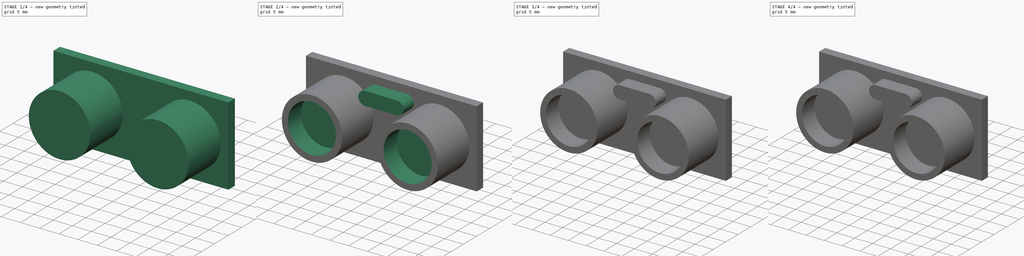
[diagram: build sequence overview — one tinted view per stage of 4, left to right]
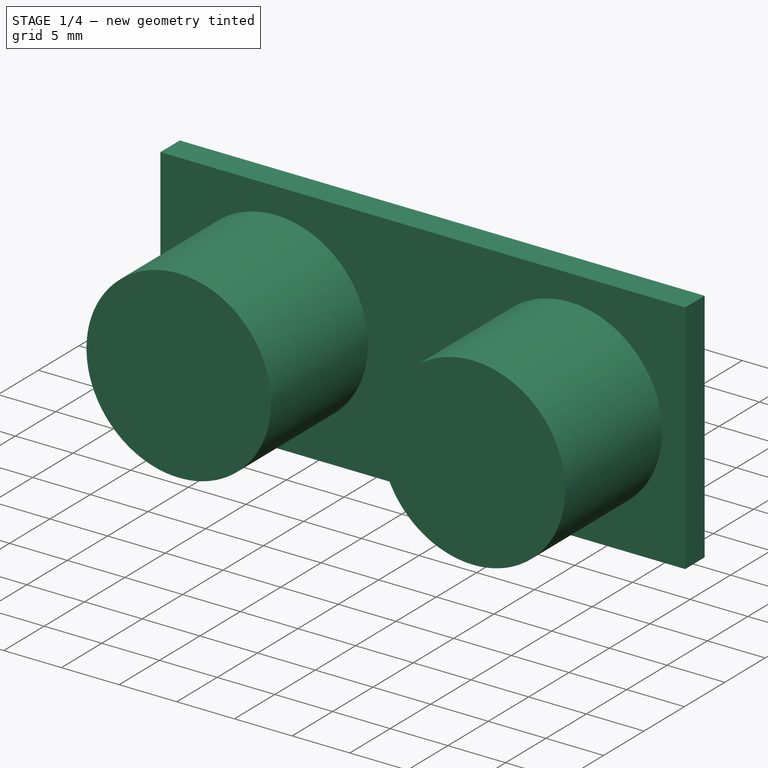
[diagram: stage 1 of 4 — iso view after this stage's code; geometry added in this stage tinted green]
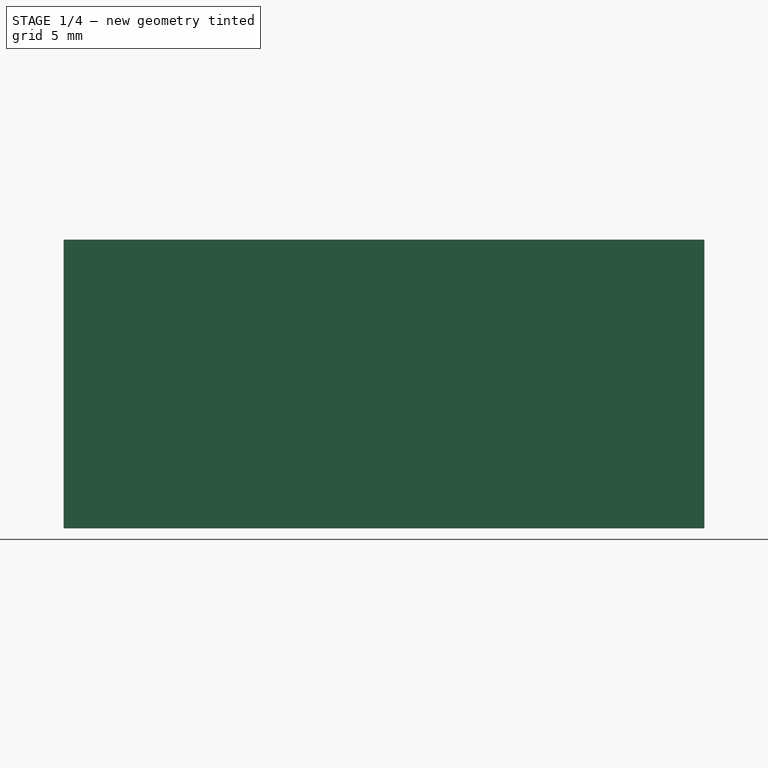
[diagram: stage 1 of 4 — front view after this stage's code; geometry added in this stage tinted green]
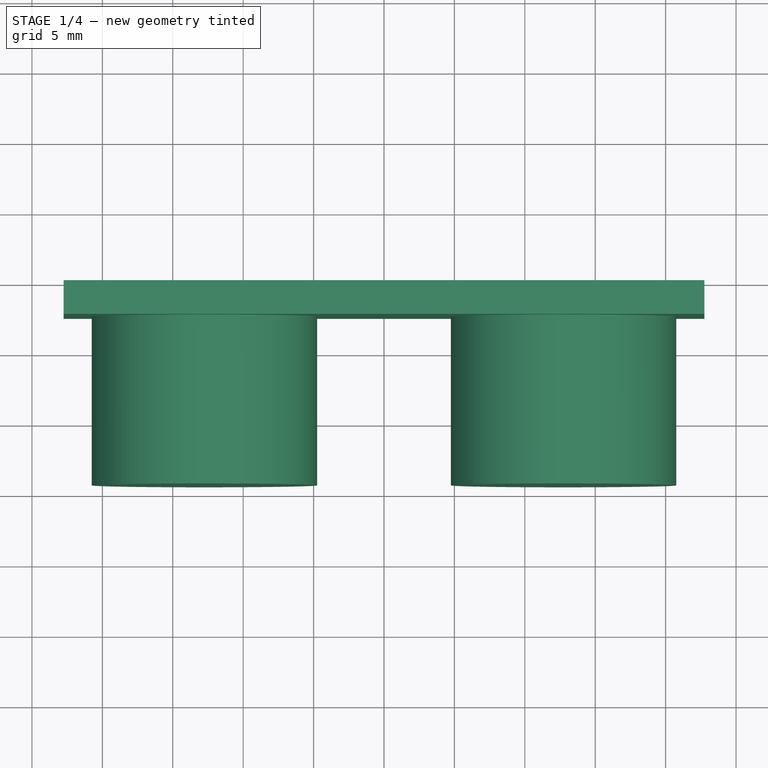
[diagram: stage 1 of 4 — top view after this stage's code; geometry added in this stage tinted green]
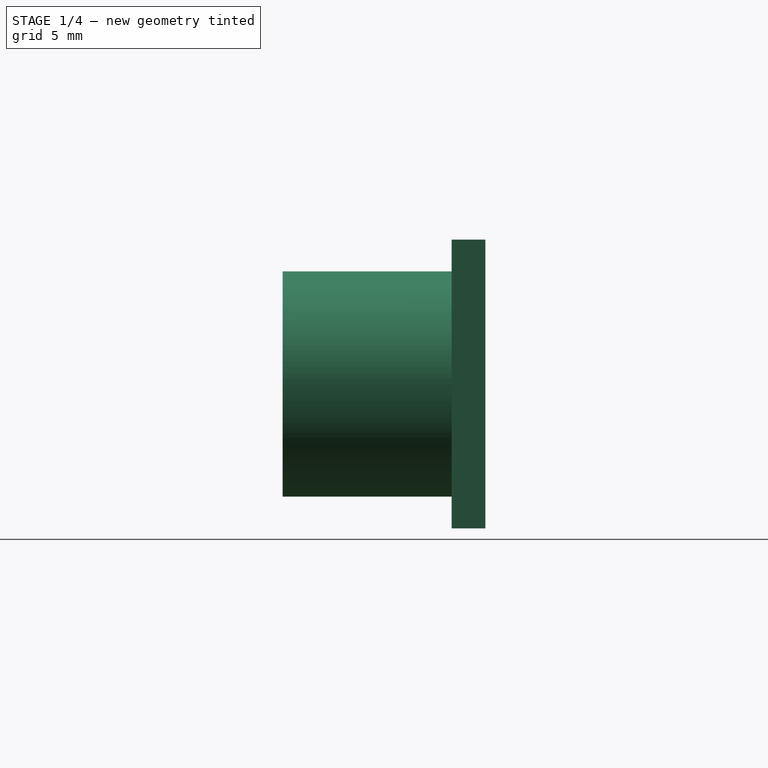
[diagram: stage 1 of 4 — right view after this stage's code; geometry added in this stage tinted green]
FCSTD DOCUMENT  (FreeCAD 0.16R6712 (Git))
Label: HC-SR04_Ultra_Sonic
License: All rights reserved
LicenseURL: http://en.wikipedia.org/wiki/All_rights_reserved
objects: Sketcher::SketchObject×7, PartDesign::Pad×6, PartDesign::Fillet×2, PartDesign::Pocket×1, PartDesign::Chamfer×1
note: 24 computed .brp shape members not serialized (recipe doc carries the construction recipe); baked Part::Feature solids carry a one-line shape summary decoded from their .brp

FEATURE [Sketcher::SketchObject] Sketch
  Placement = pos=(0,0,0) rot=(1,0,0;1.5708rad)
  sketch-geometry (4):
    g0: LineSegment StartX=-22.75 StartY=10.25 StartZ=0 EndX=22.75 EndY=10.25 EndZ=0
    g1: LineSegment StartX=22.75 StartY=10.25 StartZ=0 EndX=22.75 EndY=-10.25 EndZ=0
    g2: LineSegment StartX=22.75 StartY=-10.25 StartZ=0 EndX=-22.75 EndY=-10.25 EndZ=0
    g3: LineSegment StartX=-22.75 StartY=-10.25 StartZ=0 EndX=-22.75 EndY=10.25 EndZ=0
  constraints (12):
    c: Coincident(g0,g1)
    c: Coincident(g1,g2)
    c: Coincident(g2,g3)
    c: Coincident(g3,g0)
    c: Horizontal(g0)
    c: Vertical(g1)
    c: DistanceX(g0,g0) = 45.5
    c: DistanceY(g3,g3) = 20.5
    c: Equal(g0,g2)
    c: Equal(g3,g1)
    c: Symmetric(g0,g1,g-1)
    c: Symmetric(g2,g1,g-2)
FEATURE [PartDesign::Pad] Pad
  Length = 2.4
  Length2 = 100
  Placement = pos=(0,0,0) rot=(1,0,0;1.5708rad)
  Sketch = -> Sketch
  Type = 0
FEATURE [Sketcher::SketchObject] Sketch001
  ExternalGeometry = -> [Pad]
  Placement = pos=(0,-2.4,0) rot=(1,0,0;1.5708rad)
  Support = -> Pad [Face6]
  sketch-geometry (2):
    g0: Circle CenterX=-12.75 CenterY=0 CenterZ=0 NormalX=0 NormalY=0 NormalZ=1 Radius=8
    g1: Circle CenterX=12.75 CenterY=0 CenterZ=0 NormalX=0 NormalY=0 NormalZ=1 Radius=8
  constraints (6):
    c: Radius(g0) = 8
    c: DistanceX(g-3,g0) = 10
    c: DistanceY(g-1,g0) = 0
    c: Equal(g0,g1)
    c: DistanceY(g-1,g1) = 0
    c: Symmetric(g1,g0,g-2)
FEATURE [PartDesign::Pad] Pad001
  Length = 12
  Length2 = 100
  Placement = pos=(0,0,0) rot=(1,0,0;1.5708rad)
  Sketch = -> Sketch001
  Type = 0
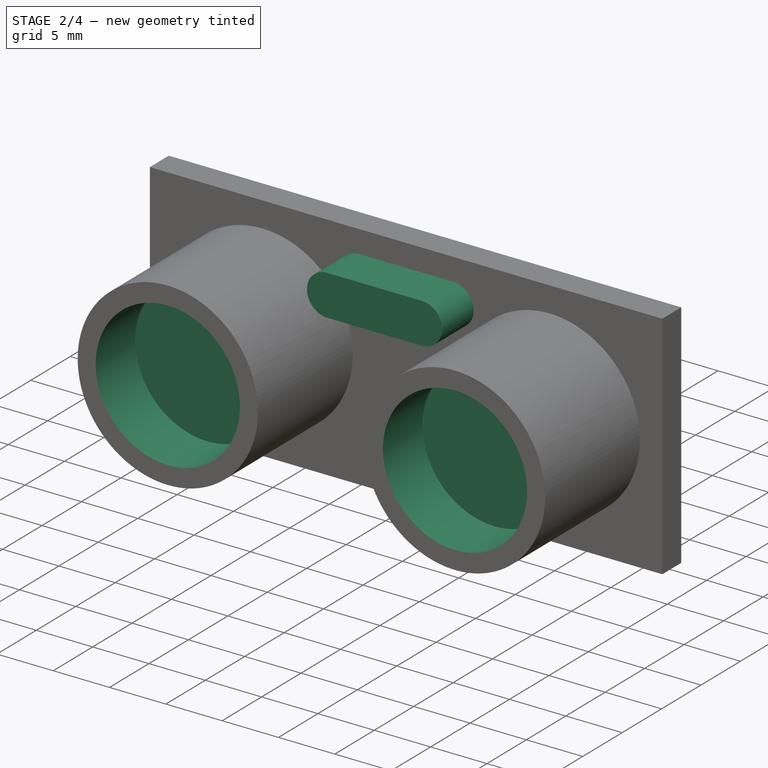
[diagram: stage 2 of 4 — iso view after this stage's code; geometry added in this stage tinted green]
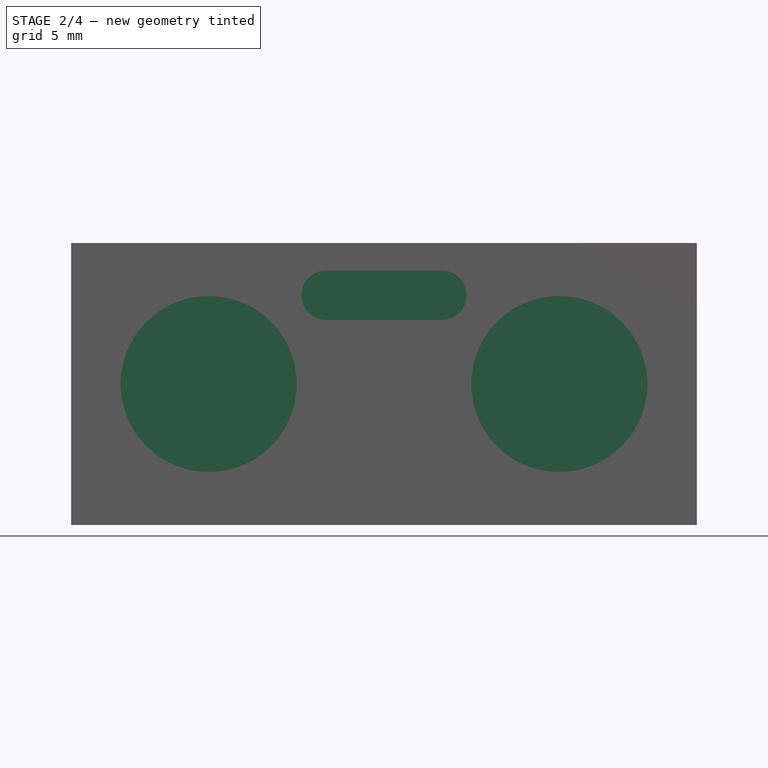
[diagram: stage 2 of 4 — front view after this stage's code; geometry added in this stage tinted green]
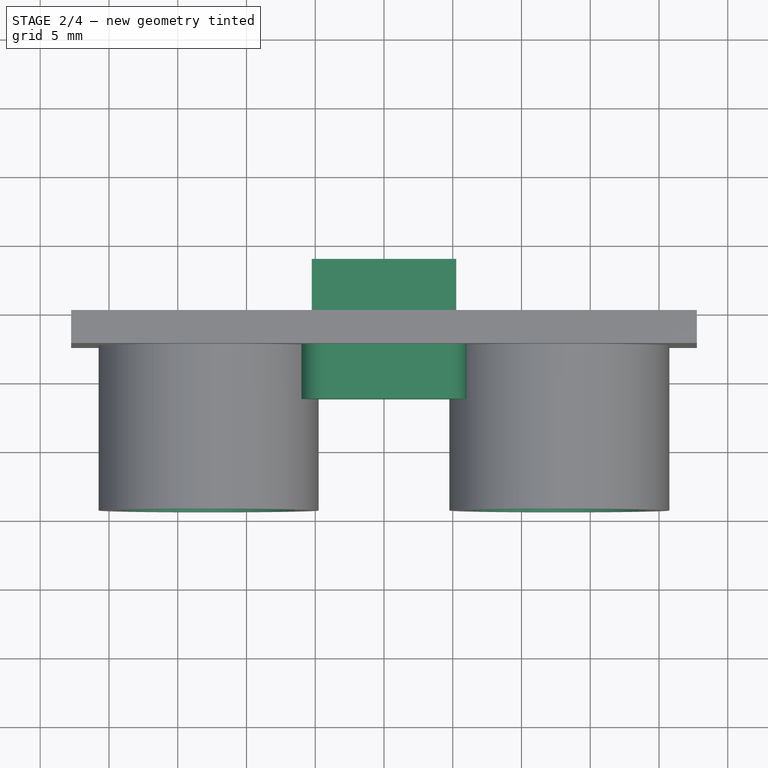
[diagram: stage 2 of 4 — top view after this stage's code; geometry added in this stage tinted green]
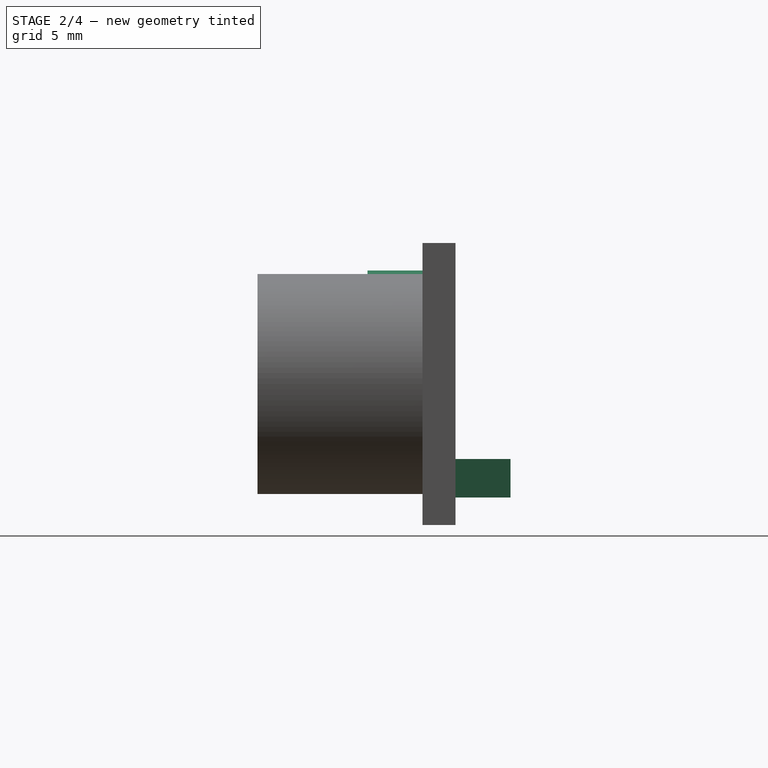
[diagram: stage 2 of 4 — right view after this stage's code; geometry added in this stage tinted green]
FEATURE [Sketcher::SketchObject] Sketch002
  ExternalGeometry = -> [Pad001]
  Placement = pos=(0,-14.4,0) rot=(1,0,0;1.5708rad)
  Support = -> Pad001 [Face9]
  sketch-geometry (2):
    g0: Circle CenterX=-12.75 CenterY=0 CenterZ=0 NormalX=0 NormalY=0 NormalZ=1 Radius=6.4
    g1: Circle CenterX=12.75 CenterY=0 CenterZ=0 NormalX=0 NormalY=0 NormalZ=1 Radius=6.4
  constraints (4):
    c: Radius(g0) = 6.4
    c: Coincident(g-3,g0)
    c: Equal(g1,g0)
    c: Symmetric(g1,g0,g-2)
FEATURE [PartDesign::Pocket] Pocket
  Length = 5
  Placement = pos=(0,0,0) rot=(1,0,0;1.5708rad)
  Sketch = -> Sketch002
  Type = 0
FEATURE [Sketcher::SketchObject] Sketch003
  Placement = pos=(0,-2.4,0) rot=(1,0,0;1.5708rad)
  Support = -> Pocket [Face5]
  sketch-geometry (4):
    g0: ArcOfCircle CenterX=-4.2 CenterY=6.45 CenterZ=0 NormalX=0 NormalY=0 NormalZ=1 Radius=1.8 StartAngle=1.5708 EndAngle=4.71239
    g1: ArcOfCircle CenterX=4.2 CenterY=6.45 CenterZ=0 NormalX=0 NormalY=0 NormalZ=1 Radius=1.8 StartAngle=4.71239 EndAngle=7.85398
    g2: LineSegment StartX=-4.2 StartY=4.65 StartZ=0 EndX=4.2 EndY=4.65 EndZ=0
    g3: LineSegment StartX=-4.2 StartY=8.25 StartZ=0 EndX=4.2 EndY=8.25 EndZ=0
  constraints (10):
    c: Tangent(g0,g3) = 1.5708
    c: Tangent(g0,g2) = -1.5708
    c: Tangent(g2,g1) = -1.5708
    c: Tangent(g3,g1) = 1.5708
    c: Horizontal(g2)
    c: Equal(g0,g1)
    c: Radius(g1) = 1.8
    c: DistanceX(g2,g2) = 8.4
    c: Symmetric(g0,g1,g-2)
    c: DistanceY(g-1,g1) = 6.45
FEATURE [PartDesign::Pad] Pad002
  Length = 4
  Length2 = 100
  Placement = pos=(0,0,0) rot=(1,0,0;1.5708rad)
  Sketch = -> Sketch003
  Type = 0
FEATURE [Sketcher::SketchObject] Sketch004
  Placement = pos=(0,0,0) rot=(-1,0,0;1.5708rad)
  Support = -> Pad002 [Face4]
  sketch-geometry (4):
    g0: LineSegment StartX=-5.25 StartY=8.25 StartZ=0 EndX=5.25 EndY=8.25 EndZ=0
    g1: LineSegment StartX=5.25 StartY=8.25 StartZ=0 EndX=5.25 EndY=5.45 EndZ=0
    g2: LineSegment StartX=5.25 StartY=5.45 StartZ=0 EndX=-5.25 EndY=5.45 EndZ=0
    g3: LineSegment StartX=-5.25 StartY=5.45 StartZ=0 EndX=-5.25 EndY=8.25 EndZ=0
  constraints (12):
    c: Coincident(g0,g1)
    c: Coincident(g1,g2)
    c: Coincident(g2,g3)
    c: Coincident(g3,g0)
    c: Horizontal(g0)
    c: Horizontal(g2)
    c: Vertical(g1)
    c: Vertical(g3)
    c: DistanceX(g0,g0) = 10.5
    c: DistanceY(g1,g1) = 2.8
    c: Symmetric(g1,g2,g-2)
    c: DistanceY(g-1,g1) = 5.45
FEATURE [PartDesign::Pad] Pad003
  Length = 4
  Length2 = 100
  Placement = pos=(0,0,0) rot=(1,0,0;1.5708rad)
  Sketch = -> Sketch004
  Type = 0
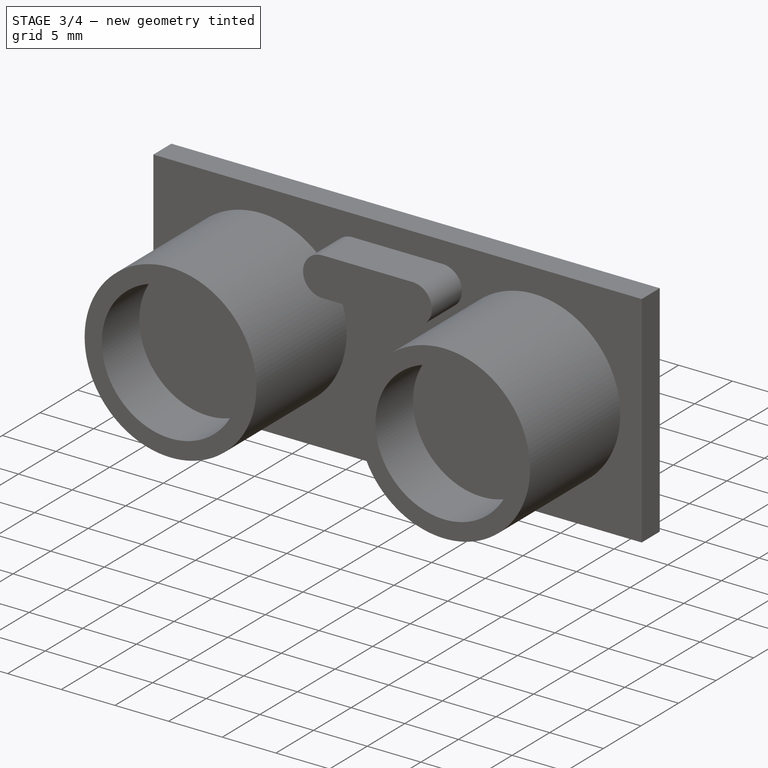
[diagram: stage 3 of 4 — iso view after this stage's code; geometry added in this stage tinted green]
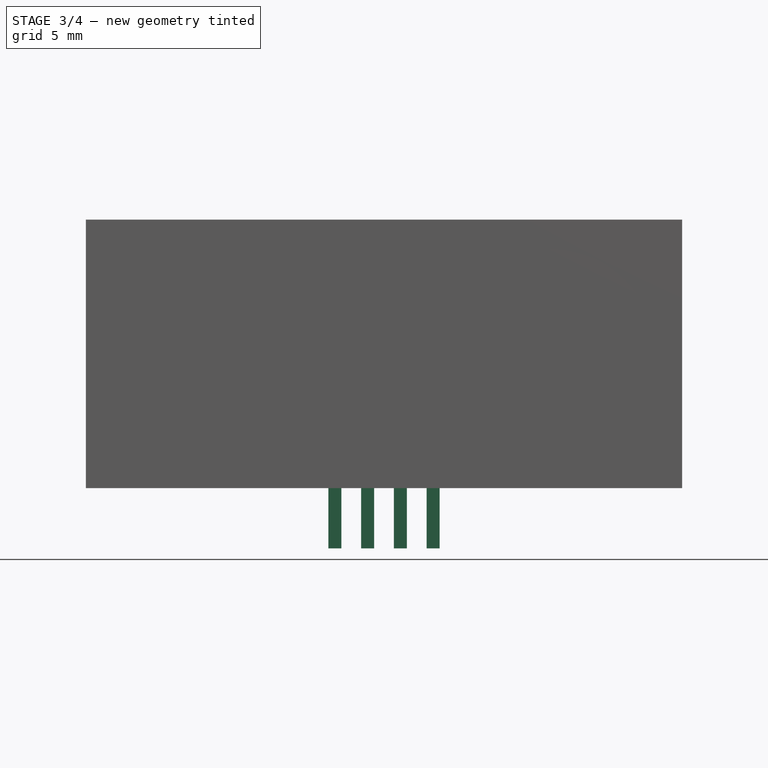
[diagram: stage 3 of 4 — front view after this stage's code; geometry added in this stage tinted green]
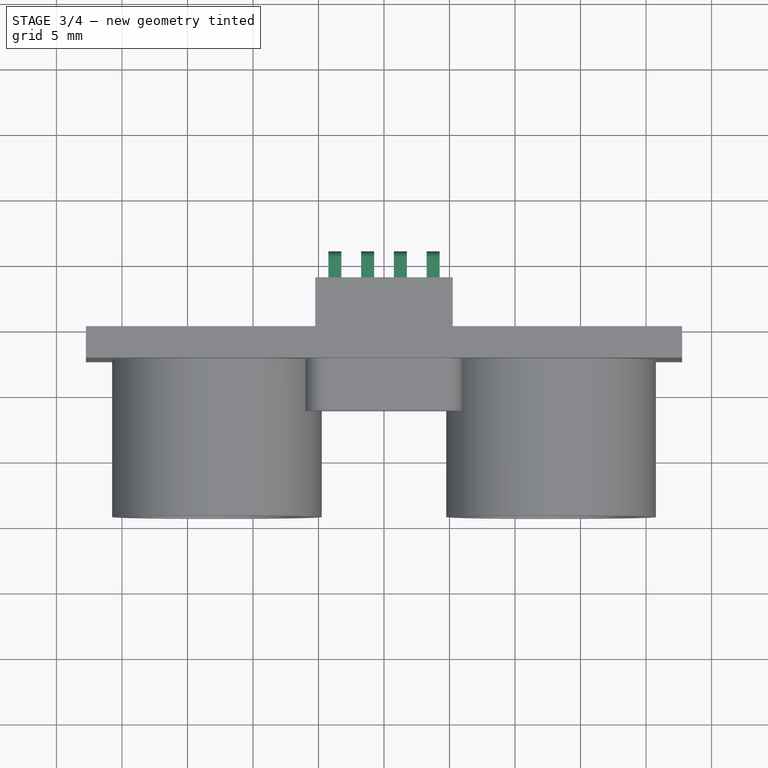
[diagram: stage 3 of 4 — top view after this stage's code; geometry added in this stage tinted green]
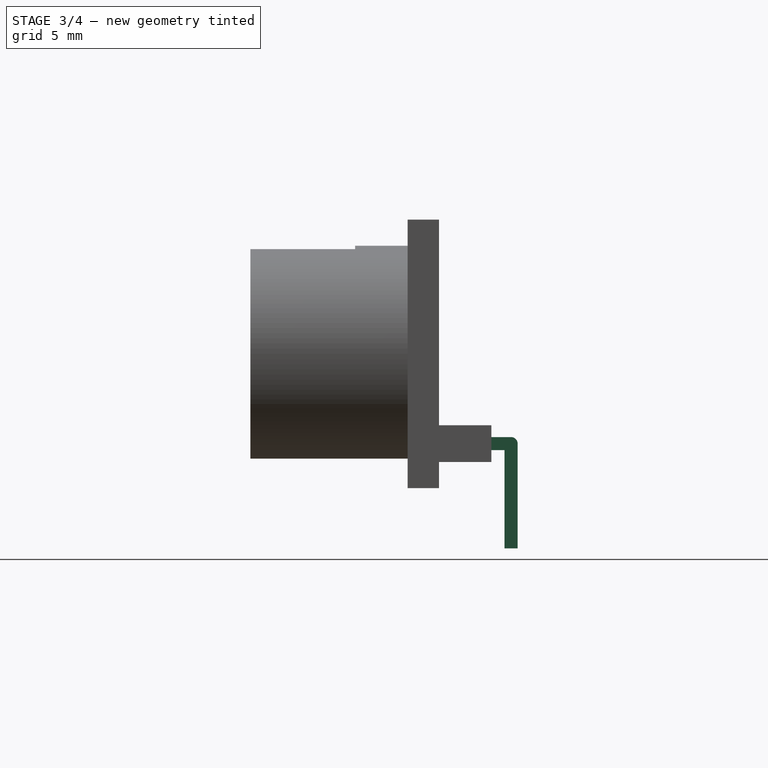
[diagram: stage 3 of 4 — right view after this stage's code; geometry added in this stage tinted green]
FEATURE [Sketcher::SketchObject] Sketch005
  ExternalGeometry = -> [Pad003]
  Placement = pos=(0,4,0) rot=(-1,0,0;1.5708rad)
  Support = -> Pad003 [Face17]
  sketch-geometry (16):
    g0: LineSegment StartX=-4.25 StartY=7.35 StartZ=0 EndX=-3.25 EndY=7.35 EndZ=0
    g1: LineSegment StartX=-3.25 StartY=7.35 StartZ=0 EndX=-3.25 EndY=6.35 EndZ=0
    g2: LineSegment StartX=-3.25 StartY=6.35 StartZ=0 EndX=-4.25 EndY=6.35 EndZ=0
    g3: LineSegment StartX=-4.25 StartY=6.35 StartZ=0 EndX=-4.25 EndY=7.35 EndZ=0
    g4: LineSegment StartX=-1.75 StartY=7.35 StartZ=0 EndX=-0.75 EndY=7.35 EndZ=0
    g5: LineSegment StartX=-0.75 StartY=7.35 StartZ=0 EndX=-0.75 EndY=6.35 EndZ=0
    g6: LineSegment StartX=-0.75 StartY=6.35 StartZ=0 EndX=-1.75 EndY=6.35 EndZ=0
    g7: LineSegment StartX=-1.75 StartY=6.35 StartZ=0 EndX=-1.75 EndY=7.35 EndZ=0
    g8: LineSegment StartX=0.75 StartY=7.35 StartZ=0 EndX=1.75 EndY=7.35 EndZ=0
    g9: LineSegment StartX=1.75 StartY=7.35 StartZ=0 EndX=1.75 EndY=6.35 EndZ=0
    g10: LineSegment StartX=1.75 StartY=6.35 StartZ=0 EndX=0.75 EndY=6.35 EndZ=0
    g11: LineSegment StartX=0.75 StartY=6.35 StartZ=0 EndX=0.75 EndY=7.35 EndZ=0
    g12: LineSegment StartX=3.25 StartY=7.35 StartZ=0 EndX=4.25 EndY=7.35 EndZ=0
    g13: LineSegment StartX=4.25 StartY=7.35 StartZ=0 EndX=4.25 EndY=6.35 EndZ=0
    g14: LineSegment StartX=4.25 StartY=6.35 StartZ=0 EndX=3.25 EndY=6.35 EndZ=0
    g15: LineSegment StartX=3.25 StartY=6.35 StartZ=0 EndX=3.25 EndY=7.35 EndZ=0
  constraints (55):
    c: Coincident(g0,g1)
    c: Coincident(g1,g2)
    c: Coincident(g2,g3)
    c: Coincident(g3,g0)
    c: Horizontal(g0)
    c: Horizontal(g2)
    c: Vertical(g1)
    c: Vertical(g3)
    c: Coincident(g4,g5)
    c: Coincident(g5,g6)
    c: Coincident(g6,g7)
    c: Coincident(g7,g4)
    c: Horizontal(g4)
    c: Horizontal(g6)
    c: Vertical(g5)
    c: Vertical(g7)
    c: Coincident(g8,g9)
    c: Coincident(g9,g10)
    c: Coincident(g10,g11)
    c: Coincident(g11,g8)
    c: Horizontal(g8)
    c: Horizontal(g10)
    c: Vertical(g9)
    c: Vertical(g11)
    c: Coincident(g12,g13)
    c: Coincident(g13,g14)
    c: Coincident(g14,g15)
    c: Coincident(g15,g12)
    c: Horizontal(g12)
    c: Horizontal(g14)
    c: Vertical(g13)
    c: Vertical(g15)
    c: Equal(g2,g1)
    c: Equal(g1,g0)
    c: Equal(g0,g3)
    c: DistanceY(g3,g3) = 1
    c: Equal(g4,g7)
    c: Equal(g7,g6)
    c: Equal(g6,g5)
    c: Equal(g5,g1)
    c: Equal(g1,g8)
    c: Equal(g8,g11)
    c: Equal(g11,g10)
    c: Equal(g10,g9)
    c: Equal(g9,g12)
    c: Equal(g12,g15)
    c: Equal(g15,g14)
    c: Equal(g14,g13)
    c: Symmetric(g1,g14,g-2)
    c: Symmetric(g5,g10,g-2)
    c: Distance(g-3) = 2.8
    c: DistanceX(g13,g-3) = 1
    c: DistanceX(g5,g10) = 1.5
    c: DistanceY(g-3,g9) = 0.9
    c: DistanceY(g-3,g13) = 0.9
FEATURE [PartDesign::Pad] Pad004
  Length = 2
  Length2 = 100
  Placement = pos=(0,0,0) rot=(1,0,0;1.5708rad)
  Sketch = -> Sketch005
  Type = 0
FEATURE [Sketcher::SketchObject] Sketch006
  ExternalGeometry = -> [Pad004]
  Placement = pos=(0,0,-7.35) rot=(1,0,0;3.14159rad)
  Support = -> Pad004 [Face33]
  sketch-geometry (16):
    g0: LineSegment StartX=-4.25 StartY=-5 StartZ=0 EndX=-3.25 EndY=-5 EndZ=0
    g1: LineSegment StartX=-3.25 StartY=-5 StartZ=0 EndX=-3.25 EndY=-6 EndZ=0
    g2: LineSegment StartX=-3.25 StartY=-6 StartZ=0 EndX=-4.25 EndY=-6 EndZ=0
    g3: LineSegment StartX=-4.25 StartY=-6 StartZ=0 EndX=-4.25 EndY=-5 EndZ=0
    g4: LineSegment StartX=-1.75 StartY=-5 StartZ=0 EndX=-0.75 EndY=-5 EndZ=0
    g5: LineSegment StartX=-0.75 StartY=-5 StartZ=0 EndX=-0.75 EndY=-6 EndZ=0
    g6: LineSegment StartX=-0.75 StartY=-6 StartZ=0 EndX=-1.75 EndY=-6 EndZ=0
    g7: LineSegment StartX=-1.75 StartY=-6 StartZ=0 EndX=-1.75 EndY=-5 EndZ=0
    g8: LineSegment StartX=0.75 StartY=-5 StartZ=0 EndX=1.75 EndY=-5 EndZ=0
    g9: LineSegment StartX=1.75 StartY=-5 StartZ=0 EndX=1.75 EndY=-6 EndZ=0
    g10: LineSegment StartX=1.75 StartY=-6 StartZ=0 EndX=0.75 EndY=-6 EndZ=0
    g11: LineSegment StartX=0.75 StartY=-6 StartZ=0 EndX=0.75 EndY=-5 EndZ=0
    g12: LineSegment StartX=3.25 StartY=-5 StartZ=0 EndX=4.25 EndY=-5 EndZ=0
    g13: LineSegment StartX=4.25 StartY=-5 StartZ=0 EndX=4.25 EndY=-6 EndZ=0
    g14: LineSegment StartX=4.25 StartY=-6 StartZ=0 EndX=3.25 EndY=-6 EndZ=0
    g15: LineSegment StartX=3.25 StartY=-6 StartZ=0 EndX=3.25 EndY=-5 EndZ=0
  constraints (52):
    c: Coincident(g0,g1)
    c: Coincident(g1,g2)
    c: Coincident(g2,g3)
    c: Coincident(g3,g0)
    c: Horizontal(g0)
    c: Horizontal(g2)
    c: Vertical(g1)
    c: Vertical(g3)
    c: Coincident(g4,g5)
    c: Coincident(g5,g6)
    c: Coincident(g6,g7)
    c: Coincident(g7,g4)
    c: Horizontal(g4)
    c: Horizontal(g6)
    c: Vertical(g5)
    c: Vertical(g7)
    c: Coincident(g8,g9)
    c: Coincident(g9,g10)
    c: Coincident(g10,g11)
    c: Coincident(g11,g8)
    c: Horizontal(g8)
    c: Horizontal(g10)
    c: Vertical(g9)
    c: Vertical(g11)
    c: Coincident(g12,g13)
    c: Coincident(g13,g14)
    c: Coincident(g14,g15)
    c: Coincident(g15,g12)
    c: Horizontal(g12)
    c: Horizontal(g14)
    c: Vertical(g13)
    c: Vertical(g15)
    c: Equal(g12,g13)
    c: Equal(g13,g14)
    c: Equal(g14,g15)
    c: Equal(g15,g8)
    c: Equal(g8,g9)
    c: Equal(g9,g10)
    c: Equal(g10,g11)
    c: Equal(g11,g5)
    c: Equal(g5,g4)
    c: Equal(g4,g7)
    c: Equal(g7,g6)
    c: Equal(g6,g0)
    c: Equal(g0,g1)
    c: Equal(g1,g2)
    c: Equal(g2,g3)
    c: DistanceX(g0,g0) = 1
    c: Coincident(g2,g-4)
    c: Coincident(g6,g-6)
    c: Coincident(g10,g-8)
    c: Coincident(g14,g-10)
FEATURE [PartDesign::Pad] Pad005
  Length = 7.5
  Length2 = 100
  Placement = pos=(0,0,0) rot=(1,0,0;1.5708rad)
  Sketch = -> Sketch006
  Type = 0
FEATURE [PartDesign::Fillet] Fillet
  Base = -> Pad005 [Edge98,Edge62,Edge78,Edge88]
  Placement = pos=(0,0,0) rot=(1,0,0;1.5708rad)
  Radius = 0.5
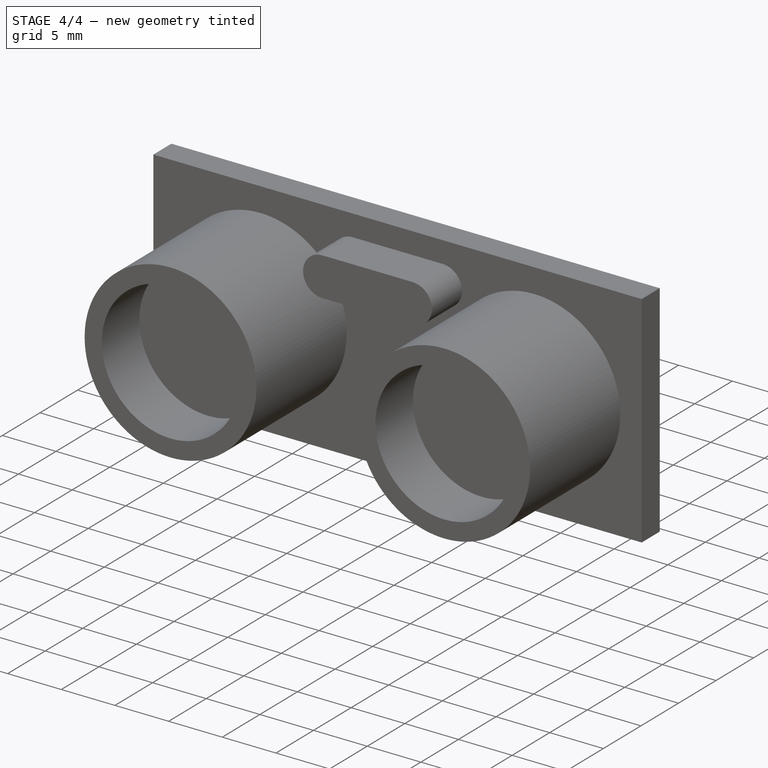
[diagram: stage 4 of 4 — iso view after this stage's code; geometry added in this stage tinted green]
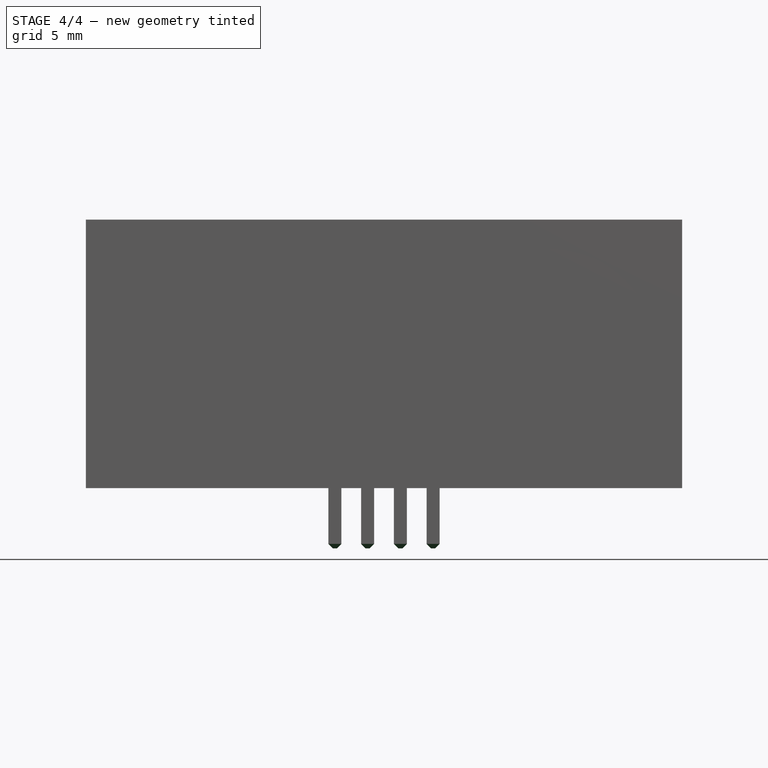
[diagram: stage 4 of 4 — front view after this stage's code; geometry added in this stage tinted green]
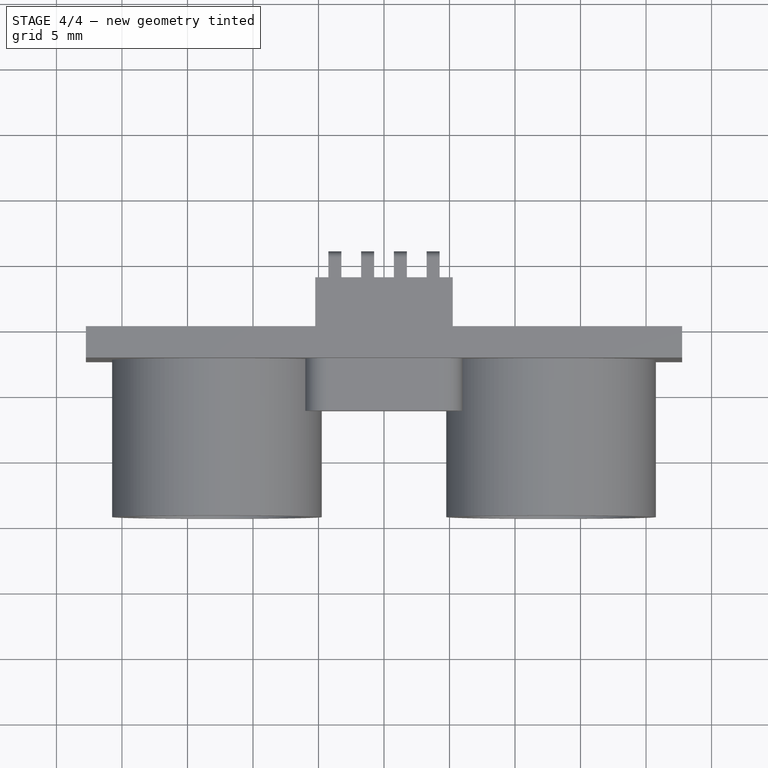
[diagram: stage 4 of 4 — top view after this stage's code; geometry added in this stage tinted green]
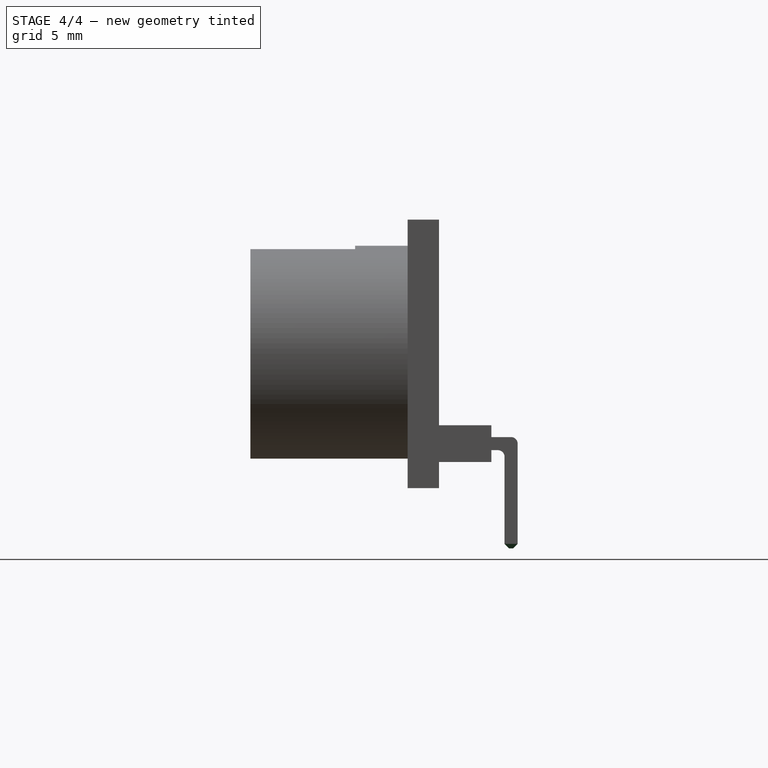
[diagram: stage 4 of 4 — right view after this stage's code; geometry added in this stage tinted green]
FEATURE [PartDesign::Fillet] Fillet001
  Base = -> Fillet [Edge59,Edge47,Edge34,Edge71]
  Placement = pos=(0,0,0) rot=(1,0,0;1.5708rad)
  Radius = 0.5
FEATURE [PartDesign::Chamfer] Chamfer
  Base = -> Fillet001 [Edge148,Edge128,Edge147,Edge133,Edge45,Edge46,Edge44,Edge13,Edge144,Edge106,Edge143,Edge111,Edge146,Edge117,Edge145,Edge122]
  Placement = pos=(0,0,0) rot=(1,0,0;1.5708rad)
  Size = 0.35
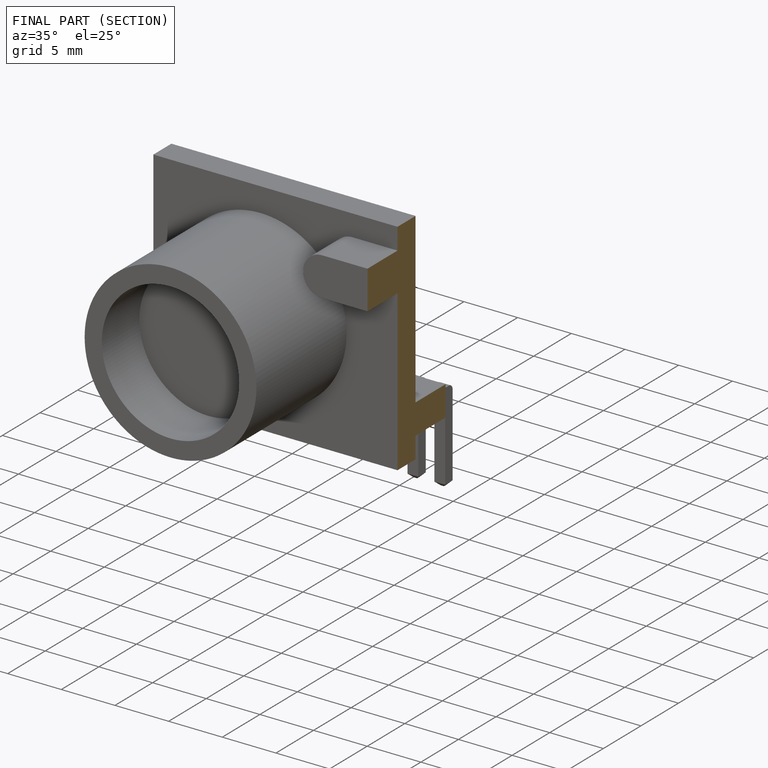
[diagram: finished part — half-section view (interior)]
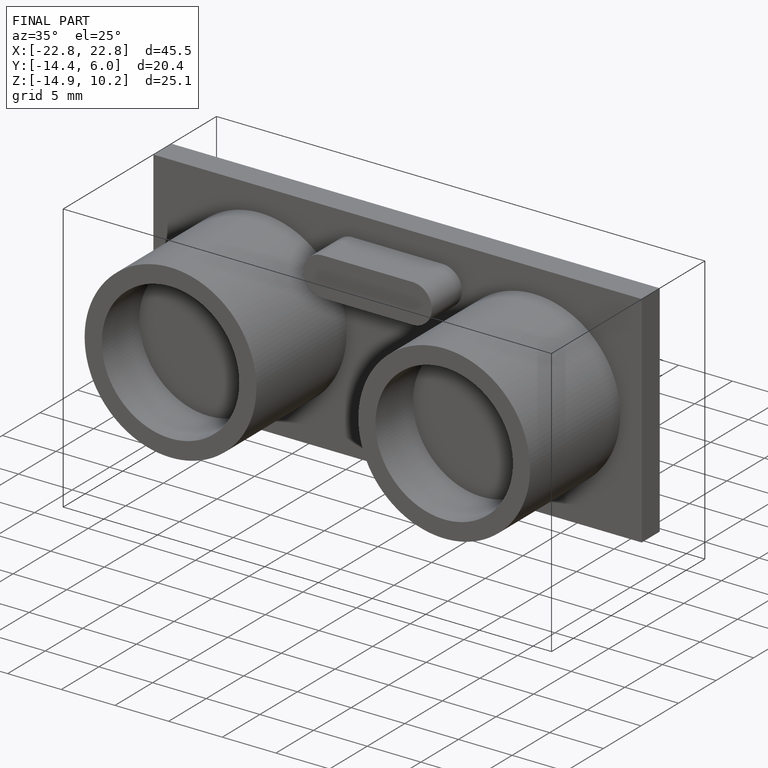
[diagram: finished part — iso view with bounding-box wireframe]
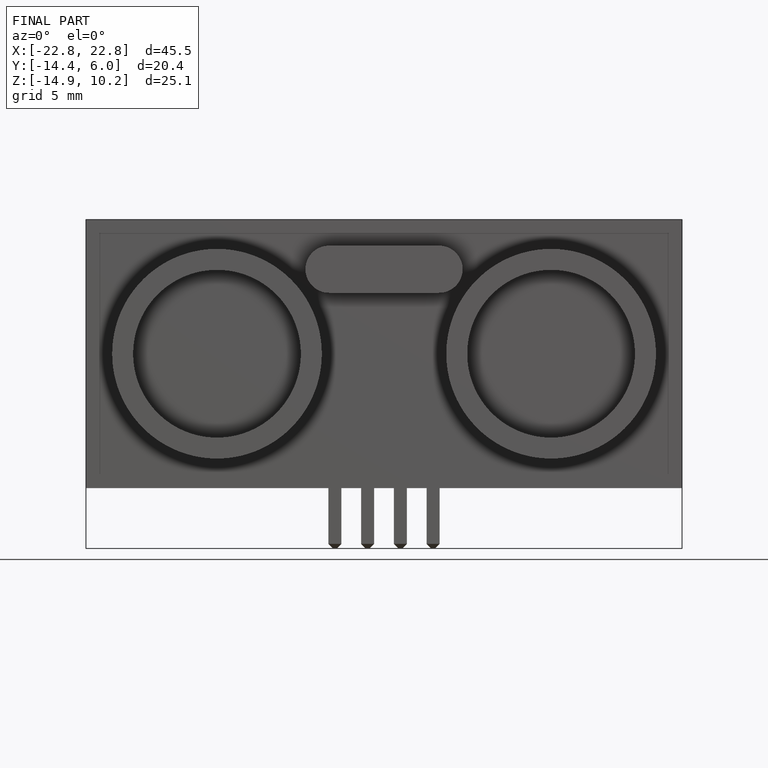
[diagram: finished part — front view with bounding-box wireframe]
